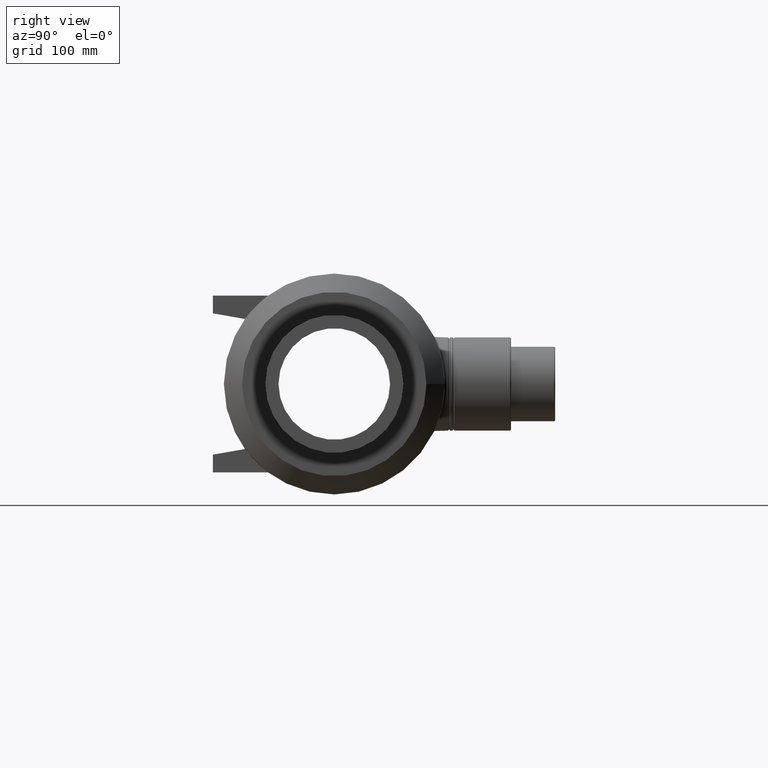
[diagram: clean part render]
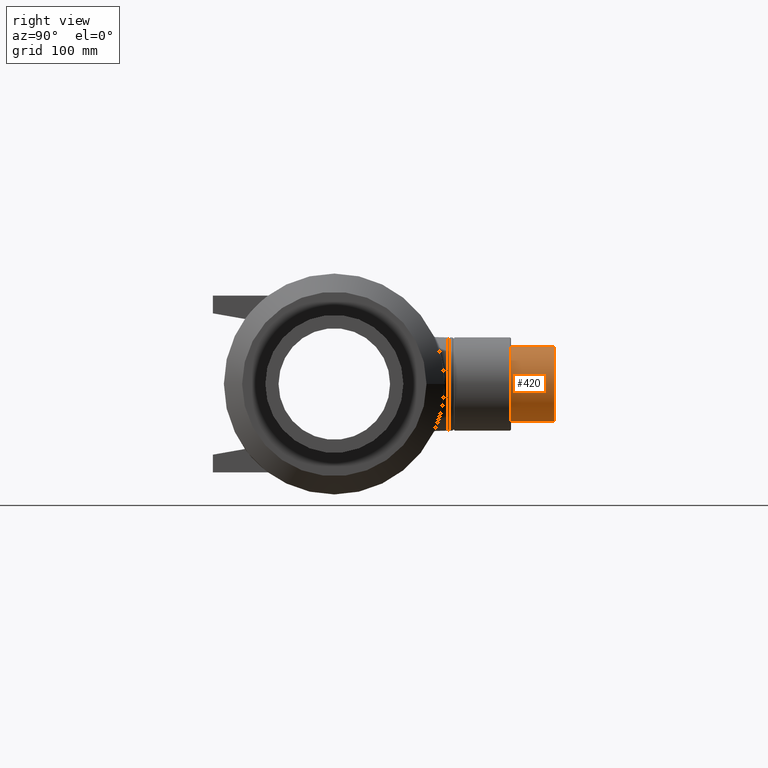
[diagram: same view with one face highlighted and labeled with its STEP entity id]
A machine part, right view. The second image highlights one B-rep face of the part: STEP entity #420.
In plain terms, the highlighted cylindrical surface (bore or boss wall) has radius 34 mm, axis along (0, 1, 0).
Its self-contained STEP definition (entity closure, byte-faithful):
#87=FACE_BOUND('',#161,.T.);
#106=CYLINDRICAL_SURFACE('',#468,34.);
#119=FACE_OUTER_BOUND('',#160,.T.);
#160=EDGE_LOOP('',(#341));
#161=EDGE_LOOP('',(#342));
#214=CIRCLE('',#464,34.);
#215=CIRCLE('',#466,34.);
#245=VERTEX_POINT('',#856);
#246=VERTEX_POINT('',#859);
#285=EDGE_CURVE('',#245,#245,#214,.T.);
#286=EDGE_CURVE('',#246,#246,#215,.T.);
#341=ORIENTED_EDGE('',*,*,#285,.T.);
#342=ORIENTED_EDGE('',*,*,#286,.F.);
#420=ADVANCED_FACE('',(#119,#87),#106,.T.);
#464=AXIS2_PLACEMENT_3D('',#857,#544,#545);
#466=AXIS2_PLACEMENT_3D('',#860,#548,#549);
#468=AXIS2_PLACEMENT_3D('',#863,#552,#553);
#544=DIRECTION('center_axis',(0.,1.,0.));
#545=DIRECTION('ref_axis',(1.,0.,0.));
#548=DIRECTION('center_axis',(0.,1.,0.));
#549=DIRECTION('ref_axis',(1.,0.,0.));
#552=DIRECTION('center_axis',(0.,1.,0.));
#553=DIRECTION('ref_axis',(-1.,0.,0.));
#856=CARTESIAN_POINT('',(-34.,160.,0.));
#857=CARTESIAN_POINT('Origin',(0.,160.,0.));
#859=CARTESIAN_POINT('',(-34.,199.15,4.16379911710101E-15));
#860=CARTESIAN_POINT('Origin',(0.,199.15,0.));
#863=CARTESIAN_POINT('Origin',(0.,180.,0.));